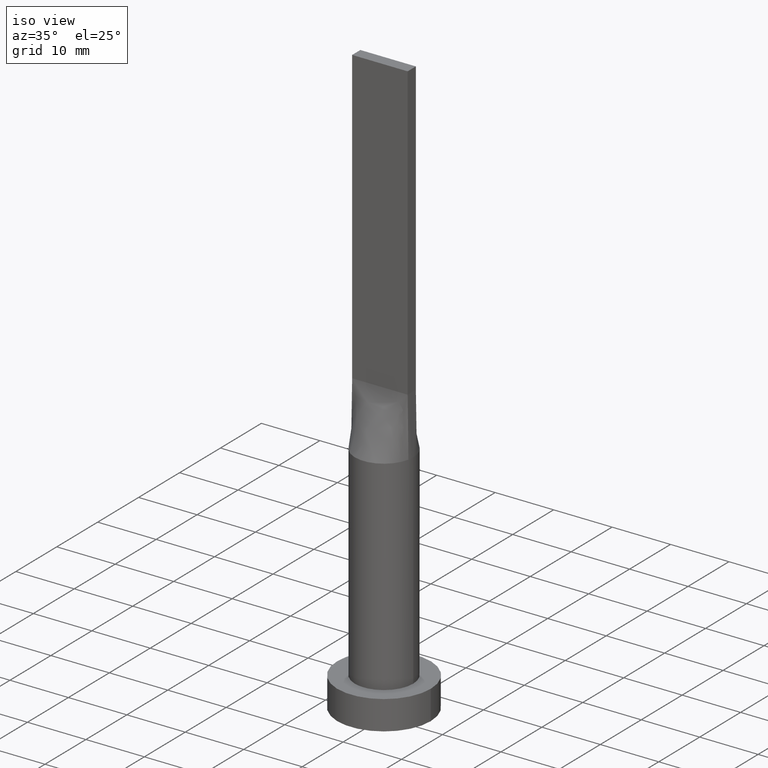
[diagram: clean part render]
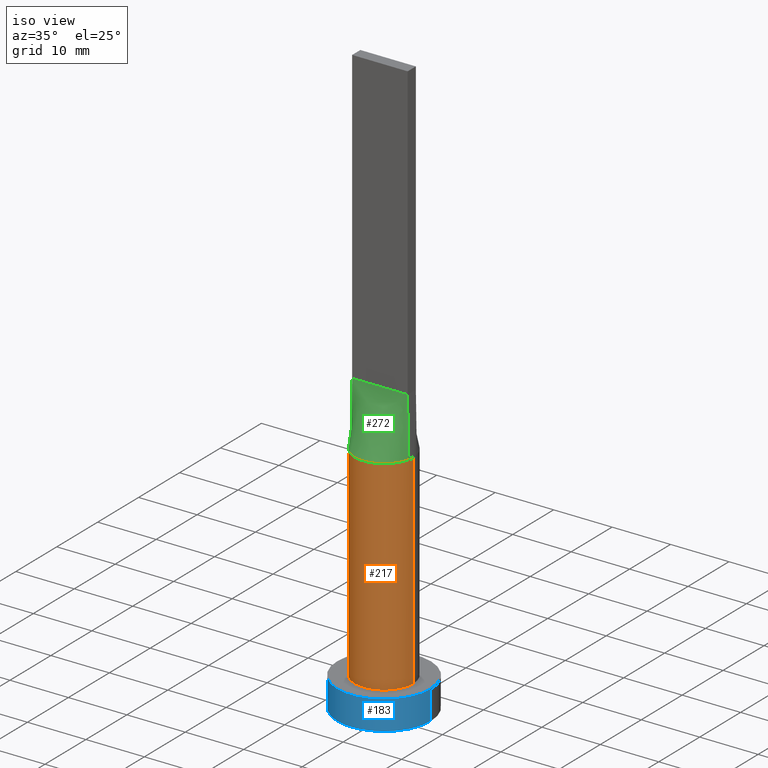
[diagram: same view with three faces highlighted in distinct colors, each labeled with its STEP entity id]
A machine part, iso view with three faces highlighted in distinct colors.
Their STEP definitions:

[orange] entity #217 — the highlighted cylindrical surface (edge-blend (fillet) strip) has radius 5 mm, axis along (-0, -0, -1).
#1 = CARTESIAN_POINT ( 'NONE',  ( -5.000000000000000888, -2.735102206719564433E-16, 40.00000000000000711 ) ) ;
#44 = DIRECTION ( 'NONE',  ( 0.000000000000000000, 0.000000000000000000, 1.000000000000000000 ) ) ;
#47 = DIRECTION ( 'NONE',  ( 0.000000000000000000, 0.000000000000000000, 1.000000000000000000 ) ) ;
#61 = CARTESIAN_POINT ( 'NONE',  ( -4.892752739180945554, -1.030053203145257168, 40.00000000000000000 ) ) ;
#76 = LINE ( 'NONE', #215, #118 ) ;
#77 = DIRECTION ( 'NONE',  ( -0.000000000000000000, -0.000000000000000000, -1.000000000000000000 ) ) ;
#80 = VERTEX_POINT ( 'NONE', #1 ) ;
#86 = CARTESIAN_POINT ( 'NONE',  ( 0.000000000000000000, 0.000000000000000000, 40.00000000000000000 ) ) ;
#112 = ORIENTED_EDGE ( 'NONE', *, *, #507, .F. ) ;
#118 = VECTOR ( 'NONE', #262, 1000.000000000000000 ) ;
#135 = EDGE_CURVE ( 'NONE', #325, #451, #264, .T. ) ;
#140 = CARTESIAN_POINT ( 'NONE',  ( 0.000000000000000000, 0.000000000000000000, 40.00000000000000000 ) ) ;
#147 = ORIENTED_EDGE ( 'NONE', *, *, #581, .F. ) ;
#158 = EDGE_CURVE ( 'NONE', #80, #558, #237, .T. ) ;
#171 = FACE_OUTER_BOUND ( 'NONE', #306, .T. ) ;
#215 = CARTESIAN_POINT ( 'NONE',  ( -5.000000000000000000, 0.000000000000000000, 40.00000000000000000 ) ) ;
#217 = ADVANCED_FACE ( 'NONE', ( #171 ), #506, .T. ) ;
#237 = CIRCLE ( 'NONE', #572, 5.000000000000000000 ) ;
#262 = DIRECTION ( 'NONE',  ( -0.000000000000000000, -0.000000000000000000, -1.000000000000000000 ) ) ;
#264 = CIRCLE ( 'NONE', #592, 5.000000000000000000 ) ;
#265 = CARTESIAN_POINT ( 'NONE',  ( -5.000000000000000000, 0.000000000000000000, 5.000000000000000000 ) ) ;
#305 = EDGE_CURVE ( 'NONE', #80, #442, #76, .T. ) ;
#306 = EDGE_LOOP ( 'NONE', ( #147, #422, #112, #515, #570, #534 ) ) ;
#325 = VERTEX_POINT ( 'NONE', #577 ) ;
#344 = CARTESIAN_POINT ( 'NONE',  ( 0.000000000000000000, 0.000000000000000000, 40.00000000000000000 ) ) ;
#365 = DIRECTION ( 'NONE',  ( 1.000000000000000000, -9.769962616701377556E-15, 0.000000000000000000 ) ) ;
#367 = EDGE_CURVE ( 'NONE', #442, #547, #585, .T. ) ;
#405 = CARTESIAN_POINT ( 'NONE',  ( 5.000000000000000888, 3.511115666546218713E-17, 40.00000000000000711 ) ) ;
#422 = ORIENTED_EDGE ( 'NONE', *, *, #135, .F. ) ;
#438 = DIRECTION ( 'NONE',  ( 0.000000000000000000, 0.000000000000000000, 1.000000000000000000 ) ) ;
#442 = VERTEX_POINT ( 'NONE', #265 ) ;
#451 = VERTEX_POINT ( 'NONE', #405 ) ;
#452 = DIRECTION ( 'NONE',  ( -1.000000000000000000, 0.000000000000000000, 0.000000000000000000 ) ) ;
#469 = CARTESIAN_POINT ( 'NONE',  ( 0.000000000000000000, 0.000000000000000000, 5.000000000000000000 ) ) ;
#470 = CARTESIAN_POINT ( 'NONE',  ( 0.000000000000000000, 0.000000000000000000, 40.00000000000000000 ) ) ;
#479 = DIRECTION ( 'NONE',  ( 1.000000000000000000, 0.000000000000000000, 0.000000000000000000 ) ) ;
#506 = CYLINDRICAL_SURFACE ( 'NONE', #522, 5.000000000000000000 ) ;
#507 = EDGE_CURVE ( 'NONE', #558, #325, #550, .T. ) ;
#512 = VECTOR ( 'NONE', #528, 1000.000000000000000 ) ;
#515 = ORIENTED_EDGE ( 'NONE', *, *, #158, .F. ) ;
#522 = AXIS2_PLACEMENT_3D ( 'NONE', #86, #77, #452 ) ;
#528 = DIRECTION ( 'NONE',  ( -0.000000000000000000, -0.000000000000000000, -1.000000000000000000 ) ) ;
#532 = DIRECTION ( 'NONE',  ( 1.000000000000000000, 0.000000000000000000, 0.000000000000000000 ) ) ;
#534 = ORIENTED_EDGE ( 'NONE', *, *, #367, .T. ) ;
#547 = VERTEX_POINT ( 'NONE', #567 ) ;
#550 = CIRCLE ( 'NONE', #601, 5.000000000000000000 ) ;
#552 = DIRECTION ( 'NONE',  ( 1.000000000000000000, 0.000000000000000000, 0.000000000000000000 ) ) ;
#558 = VERTEX_POINT ( 'NONE', #61 ) ;
#567 = CARTESIAN_POINT ( 'NONE',  ( 5.000000000000000000, 6.123233995736766282E-16, 5.000000000000000000 ) ) ;
#570 = ORIENTED_EDGE ( 'NONE', *, *, #305, .T. ) ;
#572 = AXIS2_PLACEMENT_3D ( 'NONE', #140, #47, #552 ) ;
#576 = LINE ( 'NONE', #583, #512 ) ;
#577 = CARTESIAN_POINT ( 'NONE',  ( 4.892747712986307285, -1.030052143680505683, 40.00000000000000000 ) ) ;
#579 = DIRECTION ( 'NONE',  ( 0.000000000000000000, 0.000000000000000000, 1.000000000000000000 ) ) ;
#581 = EDGE_CURVE ( 'NONE', #451, #547, #576, .T. ) ;
#583 = CARTESIAN_POINT ( 'NONE',  ( 5.000000000000000000, 6.123233995736766282E-16, 40.00000000000000000 ) ) ;
#584 = AXIS2_PLACEMENT_3D ( 'NONE', #469, #438, #532 ) ;
#585 = CIRCLE ( 'NONE', #584, 5.000000000000000000 ) ;
#592 = AXIS2_PLACEMENT_3D ( 'NONE', #470, #44, #365 ) ;
#601 = AXIS2_PLACEMENT_3D ( 'NONE', #344, #579, #479 ) ;

[blue] entity #183 — the highlighted cylindrical surface (partial cylindrical patch) has radius 8 mm, axis along (-0, -0, -1).
#2 = CARTESIAN_POINT ( 'NONE',  ( 8.000000000000000000, 9.797174393178825657E-16, 5.000000000000000000 ) ) ;
#3 = CARTESIAN_POINT ( 'NONE',  ( 0.000000000000000000, 0.000000000000000000, 0.000000000000000000 ) ) ;
#5 = EDGE_CURVE ( 'NONE', #92, #263, #191, .T. ) ;
#28 = DIRECTION ( 'NONE',  ( 1.000000000000000000, 0.000000000000000000, 0.000000000000000000 ) ) ;
#34 = CARTESIAN_POINT ( 'NONE',  ( 0.000000000000000000, 0.000000000000000000, 5.000000000000000000 ) ) ;
#64 = VERTEX_POINT ( 'NONE', #170 ) ;
#84 = AXIS2_PLACEMENT_3D ( 'NONE', #318, #218, #28 ) ;
#88 = CARTESIAN_POINT ( 'NONE',  ( -8.000000000000000000, 0.000000000000000000, 5.000000000000000000 ) ) ;
#92 = VERTEX_POINT ( 'NONE', #88 ) ;
#105 = AXIS2_PLACEMENT_3D ( 'NONE', #34, #221, #594 ) ;
#107 = FACE_OUTER_BOUND ( 'NONE', #164, .T. ) ;
#109 = ORIENTED_EDGE ( 'NONE', *, *, #544, .F. ) ;
#138 = DIRECTION ( 'NONE',  ( 0.000000000000000000, 0.000000000000000000, 1.000000000000000000 ) ) ;
#143 = EDGE_CURVE ( 'NONE', #64, #239, #409, .T. ) ;
#164 = EDGE_LOOP ( 'NONE', ( #109, #190, #301, #449 ) ) ;
#170 = CARTESIAN_POINT ( 'NONE',  ( -8.000000000000000000, 0.000000000000000000, 0.000000000000000000 ) ) ;
#183 = ADVANCED_FACE ( 'NONE', ( #107 ), #480, .T. ) ;
#190 = ORIENTED_EDGE ( 'NONE', *, *, #5, .F. ) ;
#191 = CIRCLE ( 'NONE', #84, 8.000000000000000000 ) ;
#213 = LINE ( 'NONE', #356, #253 ) ;
#218 = DIRECTION ( 'NONE',  ( 0.000000000000000000, 0.000000000000000000, 1.000000000000000000 ) ) ;
#221 = DIRECTION ( 'NONE',  ( -0.000000000000000000, -0.000000000000000000, -1.000000000000000000 ) ) ;
#239 = VERTEX_POINT ( 'NONE', #421 ) ;
#253 = VECTOR ( 'NONE', #274, 1000.000000000000000 ) ;
#263 = VERTEX_POINT ( 'NONE', #2 ) ;
#274 = DIRECTION ( 'NONE',  ( -0.000000000000000000, -0.000000000000000000, -1.000000000000000000 ) ) ;
#297 = CARTESIAN_POINT ( 'NONE',  ( 8.000000000000000000, 9.797174393178825657E-16, 5.000000000000000000 ) ) ;
#301 = ORIENTED_EDGE ( 'NONE', *, *, #445, .T. ) ;
#318 = CARTESIAN_POINT ( 'NONE',  ( 0.000000000000000000, 0.000000000000000000, 5.000000000000000000 ) ) ;
#356 = CARTESIAN_POINT ( 'NONE',  ( -8.000000000000000000, 0.000000000000000000, 5.000000000000000000 ) ) ;
#378 = DIRECTION ( 'NONE',  ( -0.000000000000000000, -0.000000000000000000, -1.000000000000000000 ) ) ;
#409 = CIRCLE ( 'NONE', #599, 8.000000000000000000 ) ;
#421 = CARTESIAN_POINT ( 'NONE',  ( 8.000000000000000000, 9.797174393178825657E-16, 0.000000000000000000 ) ) ;
#445 = EDGE_CURVE ( 'NONE', #92, #64, #213, .T. ) ;
#449 = ORIENTED_EDGE ( 'NONE', *, *, #143, .T. ) ;
#480 = CYLINDRICAL_SURFACE ( 'NONE', #105, 8.000000000000000000 ) ;
#483 = LINE ( 'NONE', #297, #573 ) ;
#544 = EDGE_CURVE ( 'NONE', #263, #239, #483, .T. ) ;
#559 = DIRECTION ( 'NONE',  ( 1.000000000000000000, 0.000000000000000000, 0.000000000000000000 ) ) ;
#573 = VECTOR ( 'NONE', #378, 1000.000000000000000 ) ;
#594 = DIRECTION ( 'NONE',  ( -1.000000000000000000, 0.000000000000000000, 0.000000000000000000 ) ) ;
#599 = AXIS2_PLACEMENT_3D ( 'NONE', #3, #138, #559 ) ;

[green] entity #272 — the highlighted face is a freeform B-spline surface patch.
#4 = CARTESIAN_POINT ( 'NONE',  ( -0.7916666666666558605, -0.9999999999999991118, 50.00000000000000000 ) ) ;
#9 = ORIENTED_EDGE ( 'NONE', *, *, #507, .T. ) ;
#13 = CARTESIAN_POINT ( 'NONE',  ( 0.9895833333333431403, -0.9999999999999995559, 50.00000000000000711 ) ) ;
#19 = VECTOR ( 'NONE', #363, 1000.000000000000000 ) ;
#23 = ORIENTED_EDGE ( 'NONE', *, *, #450, .T. ) ;
#35 = LINE ( 'NONE', #219, #55 ) ;
#39 = CARTESIAN_POINT ( 'NONE',  ( -2.770833333333325488, -0.9999999999999991118, 50.00000000000000000 ) ) ;
#41 = LINE ( 'NONE', #327, #19 ) ;
#53 = CARTESIAN_POINT ( 'NONE',  ( -3.166666666666660301, -0.9999999999999991118, 50.00000000000000711 ) ) ;
#55 = VECTOR ( 'NONE', #546, 1000.000000000000227 ) ;
#61 = CARTESIAN_POINT ( 'NONE',  ( -4.892752739180945554, -1.030053203145257168, 40.00000000000000000 ) ) ;
#62 = CARTESIAN_POINT ( 'NONE',  ( 3.958333333333337922, -0.9999999999999995559, 50.00000000000001421 ) ) ;
#67 = CARTESIAN_POINT ( 'NONE',  ( 1.649264041307592965, -4.731318088779740805, 40.00000000000001421 ) ) ;
#91 = CARTESIAN_POINT ( 'NONE',  ( -1.331739278681922656, -4.830988864699811813, 39.99999999999999289 ) ) ;
#100 = CARTESIAN_POINT ( 'NONE',  ( -4.750000000000000000, -0.9999999999999991118, 50.00000000000000000 ) ) ;
#117 = EDGE_CURVE ( 'NONE', #446, #558, #513, .T. ) ;
#137 = CARTESIAN_POINT ( 'NONE',  ( -1.649264041307596962, -4.731318088779738140, 40.00000000000001421 ) ) ;
#146 = CARTESIAN_POINT ( 'NONE',  ( -4.214142381859629971, -2.735777372109855499, 40.00000000000001421 ) ) ;
#167 = CARTESIAN_POINT ( 'NONE',  ( 1.331739278681917771, -4.830988864699812702, 39.99999999999998579 ) ) ;
#179 = VERTEX_POINT ( 'NONE', #339 ) ;
#195 = CARTESIAN_POINT ( 'NONE',  ( -1.979166666666656749, -0.9999999999999991118, 50.00000000000000000 ) ) ;
#199 = CARTESIAN_POINT ( 'NONE',  ( 3.067114325249245876, -3.991228734590925864, 40.00000000000000711 ) ) ;
#219 = CARTESIAN_POINT ( 'NONE',  ( 4.821374462466871513, -1.015026202624605967, 45.00000000000000000 ) ) ;
#224 = CARTESIAN_POINT ( 'NONE',  ( -3.067114325249250317, -3.991228734590923199, 40.00000000000000711 ) ) ;
#225 = CARTESIAN_POINT ( 'NONE',  ( -4.750000000000000000, -0.9999999999999991118, 50.00000000000000000 ) ) ;
#226 = VECTOR ( 'NONE', #279, 1000.000000000000227 ) ;
#234 = EDGE_CURVE ( 'NONE', #446, #179, #41, .T. ) ;
#238 = CARTESIAN_POINT ( 'NONE',  ( -4.354166666666665186, -0.9999999999999991118, 50.00000000000000711 ) ) ;
#243 = CARTESIAN_POINT ( 'NONE',  ( 0.7916666666666767327, -0.9999999999999995559, 50.00000000000000000 ) ) ;
#246 = CARTESIAN_POINT ( 'NONE',  ( 0.3958333333333435289, -0.9999999999999993339, 50.00000000000000711 ) ) ;
#250 = CARTESIAN_POINT ( 'NONE',  ( 1.583333333333342585, -0.9999999999999995559, 50.00000000000000711 ) ) ;
#256 = CARTESIAN_POINT ( 'NONE',  ( 4.354166666666669627, -0.9999999999999995559, 50.00000000000000711 ) ) ;
#272 = ADVANCED_FACE ( 'NONE', ( #281 ), #389, .T. ) ;
#279 = DIRECTION ( 'NONE',  ( -0.01427337385845012935, -0.003004920812305205639, -0.9998936149659165551 ) ) ;
#281 = FACE_OUTER_BOUND ( 'NONE', #377, .T. ) ;
#293 = CARTESIAN_POINT ( 'NONE',  ( -0.6760916456145810161, -4.965368365385190330, 40.00000000000000711 ) ) ;
#298 = CARTESIAN_POINT ( 'NONE',  ( -0.3958333333333227677, -0.9999999999999991118, 50.00000000000000000 ) ) ;
#325 = VERTEX_POINT ( 'NONE', #577 ) ;
#327 = CARTESIAN_POINT ( 'NONE',  ( -4.750000000000000000, -0.9999999999999991118, 50.00000000000000000 ) ) ;
#337 = CARTESIAN_POINT ( 'NONE',  ( -4.808752461626938590, -1.429035605956546329, 40.00000000000000000 ) ) ;
#339 = CARTESIAN_POINT ( 'NONE',  ( 4.750000000000000000, -0.9999999999999997780, 50.00000000000000000 ) ) ;
#341 = CARTESIAN_POINT ( 'NONE',  ( 4.214142381859629971, -2.735777372109856831, 40.00000000000000000 ) ) ;
#344 = CARTESIAN_POINT ( 'NONE',  ( 0.000000000000000000, 0.000000000000000000, 40.00000000000000000 ) ) ;
#363 = DIRECTION ( 'NONE',  ( 1.000000000000000000, -6.847592668329501559E-17, 0.000000000000000000 ) ) ;
#369 = ORIENTED_EDGE ( 'NONE', *, *, #117, .T. ) ;
#376 = CARTESIAN_POINT ( 'NONE',  ( -2.546422404201599488, -4.351724242187074765, 40.00000000000002132 ) ) ;
#377 = EDGE_LOOP ( 'NONE', ( #9, #23, #491, #369 ) ) ;
#384 = CARTESIAN_POINT ( 'NONE',  ( 0.3380808736611294329, -5.000000000000000000, 39.99999999999999289 ) ) ;
#389 = B_SPLINE_SURFACE_WITH_KNOTS ( 'NONE', 3, 1, ( 
 ( #555, #100 ),
 ( #337, #238 ),
 ( #519, #475 ),
 ( #146, #53 ),
 ( #429, #39 ),
 ( #224, #195 ),
 ( #376, #464 ),
 ( #137, #509 ),
 ( #91, #4 ),
 ( #293, #298 ),
 ( #489, #536 ),
 ( #384, #393 ),
 ( #586, #246 ),
 ( #167, #243 ),
 ( #67, #13 ),
 ( #448, #250 ),
 ( #199, #569 ),
 ( #435, #391 ),
 ( #341, #526 ),
 ( #484, #62 ),
 ( #441, #256 ),
 ( #533, #580 ) ),
 .UNSPECIFIED., .F., .F., .F.,
 ( 4, 2, 2, 2, 2, 2, 2, 2, 2, 2, 4 ),
 ( 2, 2 ),
 ( 0.000000000000000000, 0.1250000000000000278, 0.2500000000000000555, 0.3750000000000001110, 0.4375000000000000555, 0.5000000000000000000, 0.5625000000000000000, 0.6250000000000000000, 0.7500000000000000000, 0.8750000000000001110, 1.000000000000000000 ),
 ( 0.000000000000000000, 1.000000000000000000 ),
 .UNSPECIFIED. ) ;
#391 = CARTESIAN_POINT ( 'NONE',  ( 2.770833333333341475, -0.9999999999999995559, 50.00000000000001421 ) ) ;
#393 = CARTESIAN_POINT ( 'NONE',  ( 0.1979166666666768715, -0.9999999999999993339, 50.00000000000000711 ) ) ;
#429 = CARTESIAN_POINT ( 'NONE',  ( -3.900093280396790263, -3.182195704254722646, 40.00000000000000000 ) ) ;
#435 = CARTESIAN_POINT ( 'NONE',  ( 3.900093280396789819, -3.182195704254725754, 39.99999999999999289 ) ) ;
#441 = CARTESIAN_POINT ( 'NONE',  ( 4.808752461626937702, -1.429035605956550103, 40.00000000000001421 ) ) ;
#446 = VERTEX_POINT ( 'NONE', #225 ) ;
#448 = CARTESIAN_POINT ( 'NONE',  ( 2.546422404201595491, -4.351724242187078318, 40.00000000000000711 ) ) ;
#450 = EDGE_CURVE ( 'NONE', #325, #179, #35, .T. ) ;
#464 = CARTESIAN_POINT ( 'NONE',  ( -1.583333333333322823, -0.9999999999999991118, 50.00000000000000000 ) ) ;
#475 = CARTESIAN_POINT ( 'NONE',  ( -3.958333333333330373, -0.9999999999999991118, 50.00000000000000711 ) ) ;
#479 = DIRECTION ( 'NONE',  ( 1.000000000000000000, 0.000000000000000000, 0.000000000000000000 ) ) ;
#484 = CARTESIAN_POINT ( 'NONE',  ( 4.667610010780611773, -1.859271532507964286, 40.00000000000002842 ) ) ;
#489 = CARTESIAN_POINT ( 'NONE',  ( -0.3380808736611334853, -5.000000000000000000, 40.00000000000000711 ) ) ;
#491 = ORIENTED_EDGE ( 'NONE', *, *, #234, .F. ) ;
#507 = EDGE_CURVE ( 'NONE', #558, #325, #550, .T. ) ;
#509 = CARTESIAN_POINT ( 'NONE',  ( -0.9895833333333223791, -0.9999999999999991118, 50.00000000000000000 ) ) ;
#513 = LINE ( 'NONE', #521, #226 ) ;
#519 = CARTESIAN_POINT ( 'NONE',  ( -4.667610010780609997, -1.859271532507959845, 40.00000000000000711 ) ) ;
#521 = CARTESIAN_POINT ( 'NONE',  ( -4.821374462466872401, -1.015026202624603524, 45.00000000000000000 ) ) ;
#526 = CARTESIAN_POINT ( 'NONE',  ( 3.166666666666674068, -0.9999999999999995559, 50.00000000000001421 ) ) ;
#533 = CARTESIAN_POINT ( 'NONE',  ( 4.892748924933744803, -1.030052405249212155, 40.00000000000000000 ) ) ;
#536 = CARTESIAN_POINT ( 'NONE',  ( -0.1979166666666562768, -0.9999999999999993339, 50.00000000000000711 ) ) ;
#546 = DIRECTION ( 'NONE',  ( -0.01427337385845004088, 0.003004920812305552583, 0.9998936149659165551 ) ) ;
#550 = CIRCLE ( 'NONE', #601, 5.000000000000000000 ) ;
#555 = CARTESIAN_POINT ( 'NONE',  ( -4.892748924933745691, -1.030052405249207936, 40.00000000000000000 ) ) ;
#558 = VERTEX_POINT ( 'NONE', #61 ) ;
#569 = CARTESIAN_POINT ( 'NONE',  ( 1.979166666666675845, -0.9999999999999995559, 50.00000000000001421 ) ) ;
#577 = CARTESIAN_POINT ( 'NONE',  ( 4.892747712986307285, -1.030052143680505683, 40.00000000000000000 ) ) ;
#579 = DIRECTION ( 'NONE',  ( 0.000000000000000000, 0.000000000000000000, 1.000000000000000000 ) ) ;
#580 = CARTESIAN_POINT ( 'NONE',  ( 4.750000000000000000, -0.9999999999999997780, 50.00000000000000000 ) ) ;
#586 = CARTESIAN_POINT ( 'NONE',  ( 0.6760916456145764641, -4.965368365385190330, 40.00000000000000000 ) ) ;
#601 = AXIS2_PLACEMENT_3D ( 'NONE', #344, #579, #479 ) ;